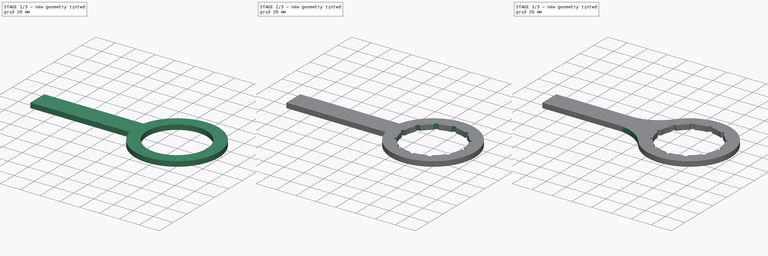
[diagram: build sequence overview — one tinted view per stage of 3, left to right]
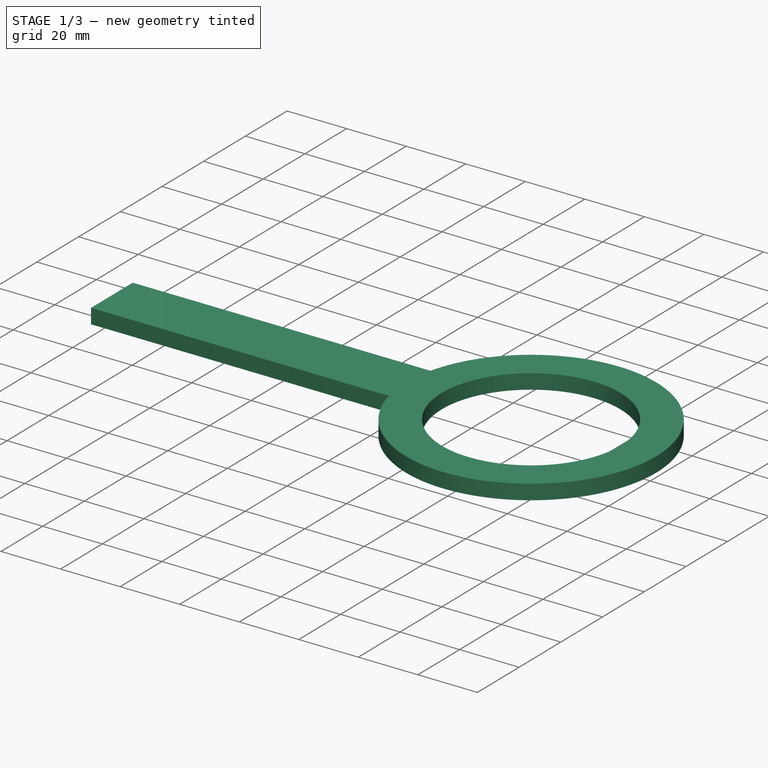
[diagram: stage 1 of 3 — iso view after this stage's code; geometry added in this stage tinted green]
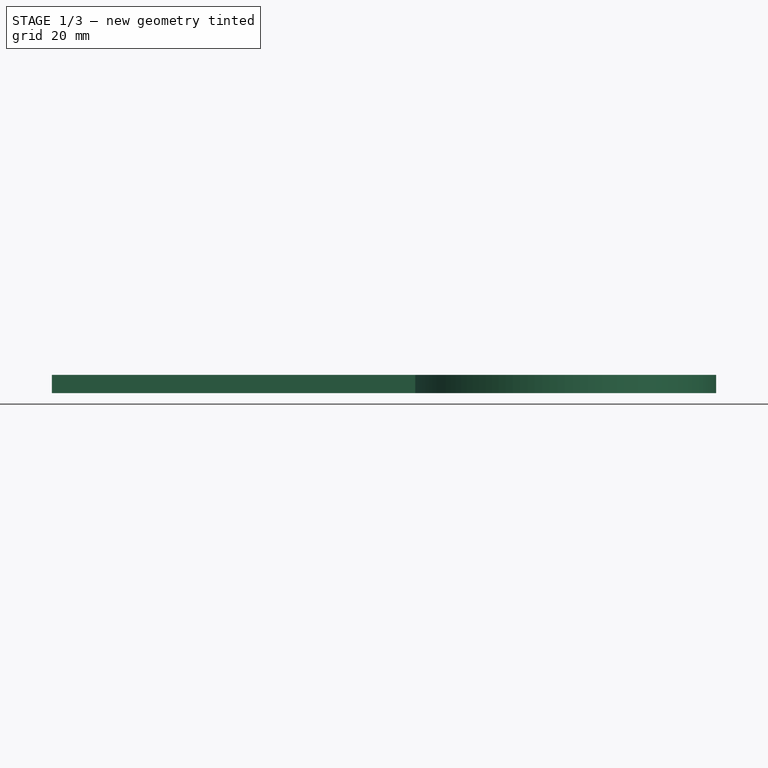
[diagram: stage 1 of 3 — front view after this stage's code; geometry added in this stage tinted green]
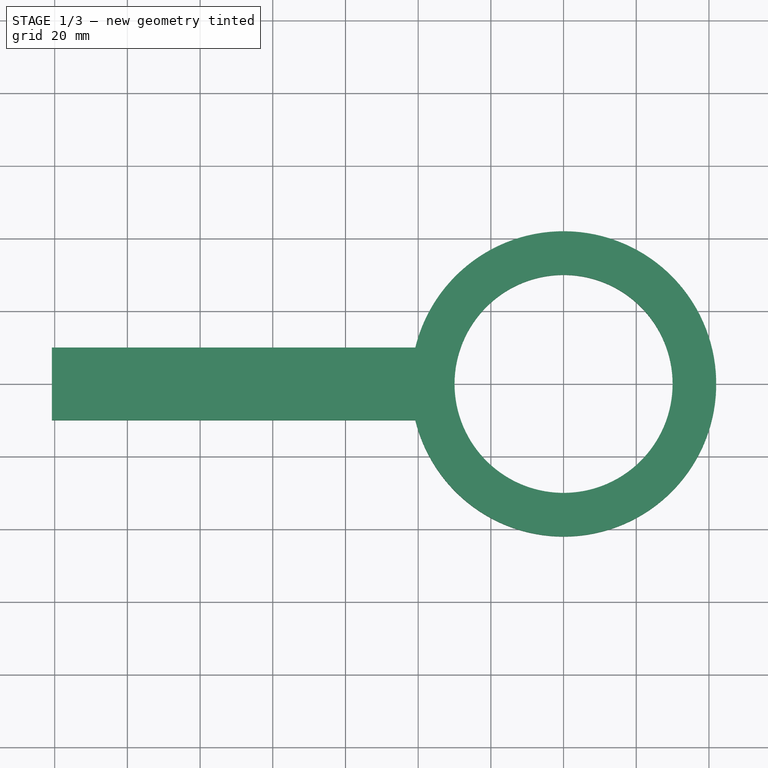
[diagram: stage 1 of 3 — top view after this stage's code; geometry added in this stage tinted green]
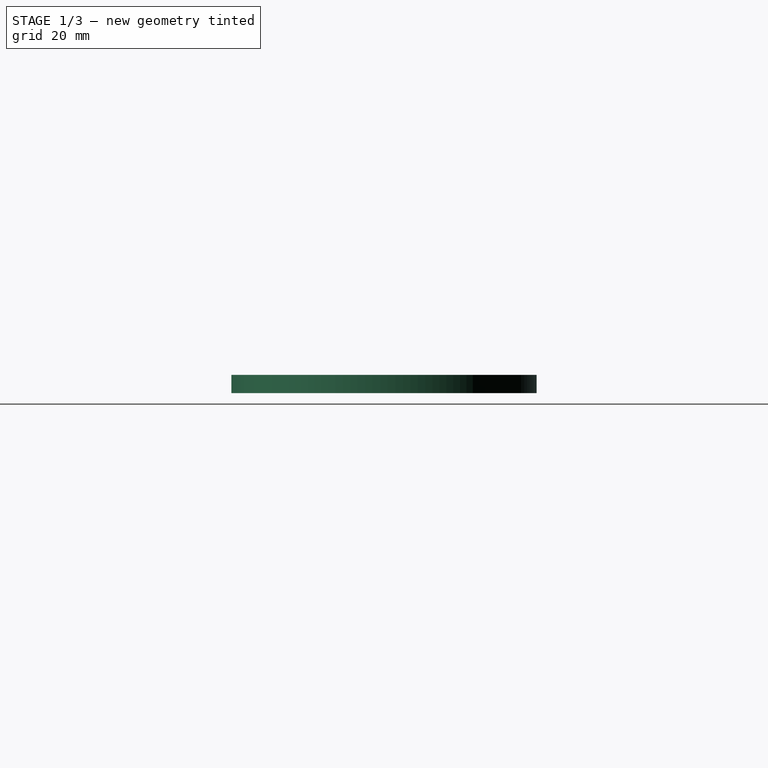
[diagram: stage 1 of 3 — right view after this stage's code; geometry added in this stage tinted green]
FCSTD DOCUMENT  (FreeCAD 0.15R4671 (Git))
Label: resinTankKey
License: CC-BY 3.0
LicenseURL: http://creativecommons.org/licenses/by/3.0/
objects: Sketcher::SketchObject×3, PartDesign::Pocket×2, PartDesign::Fillet×2, PartDesign::Pad×1, PartDesign::PolarPattern×1
note: 12 computed .brp shape members not serialized (recipe doc carries the construction recipe); baked Part::Feature solids carry a one-line shape summary decoded from their .brp

FEATURE [Sketcher::SketchObject] Sketch  label="Sketch corps"
  sketch-geometry (4):
    g0: LineSegment StartX=-140.792 StartY=10 StartZ=0 EndX=-40.7922 EndY=10 EndZ=0
    g1: LineSegment StartX=-40.7922 StartY=-10 StartZ=0 EndX=-140.792 EndY=-10 EndZ=0
    g2: LineSegment StartX=-140.792 StartY=-10 StartZ=0 EndX=-140.792 EndY=10 EndZ=0
    g3: ArcOfCircle CenterX=0 CenterY=0 CenterZ=0 NormalX=0 NormalY=0 NormalZ=1 Radius=42 StartAngle=3.382 EndAngle=9.18437
  constraints (13):
    c: Coincident(g1,g2)
    c: Coincident(g2,g0)
    c: Horizontal(g0)
    c: Horizontal(g1)
    c: Vertical(g2)
    c: Coincident(g0,g3)
    c: Coincident(g1,g3)
    c: Equal(g0,g1)
    c: Distance(g2) = 20
    c: Distance(g0) = 100
    c: DistanceY(g-1,g3) = 0
    c: DistanceX(g-1,g3) = 0
    c: Radius(g3) = 42
FEATURE [PartDesign::Pad] Pad
  Length = 5
  Length2 = 100
  Sketch = -> Sketch
  Type = 0
FEATURE [Sketcher::SketchObject] Sketch001  label="Sketch trou"
  Placement = pos=(0,0,5) rot=(0,0,1;0rad)
  Support = -> Pad [Face6]
  sketch-geometry (1):
    g0: Circle CenterX=0 CenterY=0 CenterZ=0 NormalX=0 NormalY=0 NormalZ=1 Radius=30
  constraints (3):
    c: DistanceY(g-1,g0) = 0
    c: DistanceX(g-1,g0) = 0
    c: Radius(g0) = 30
FEATURE [PartDesign::Pocket] Pocket  label="trou"
  Length = 5
  Sketch = -> Sketch001
  Type = 1
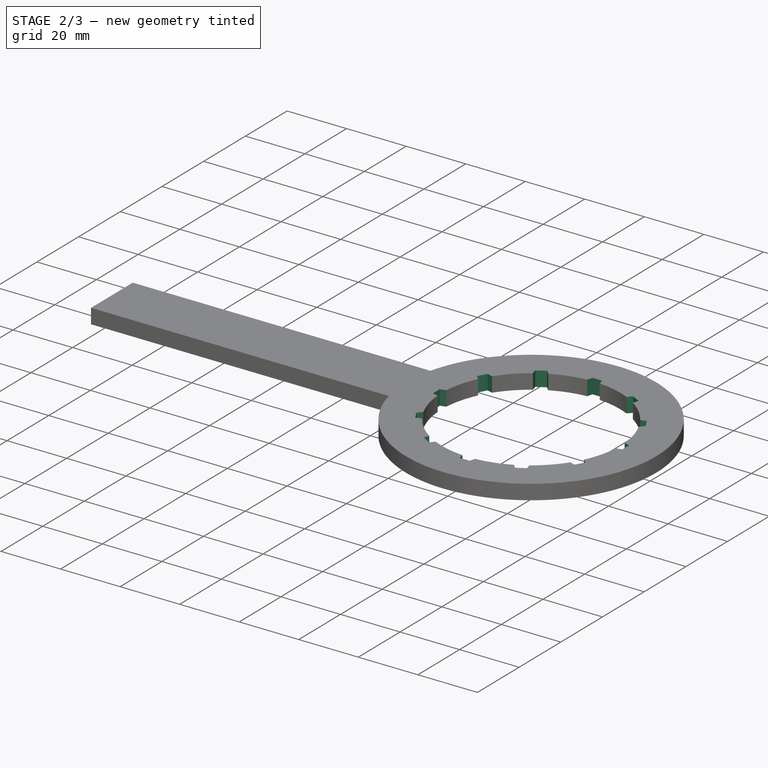
[diagram: stage 2 of 3 — iso view after this stage's code; geometry added in this stage tinted green]
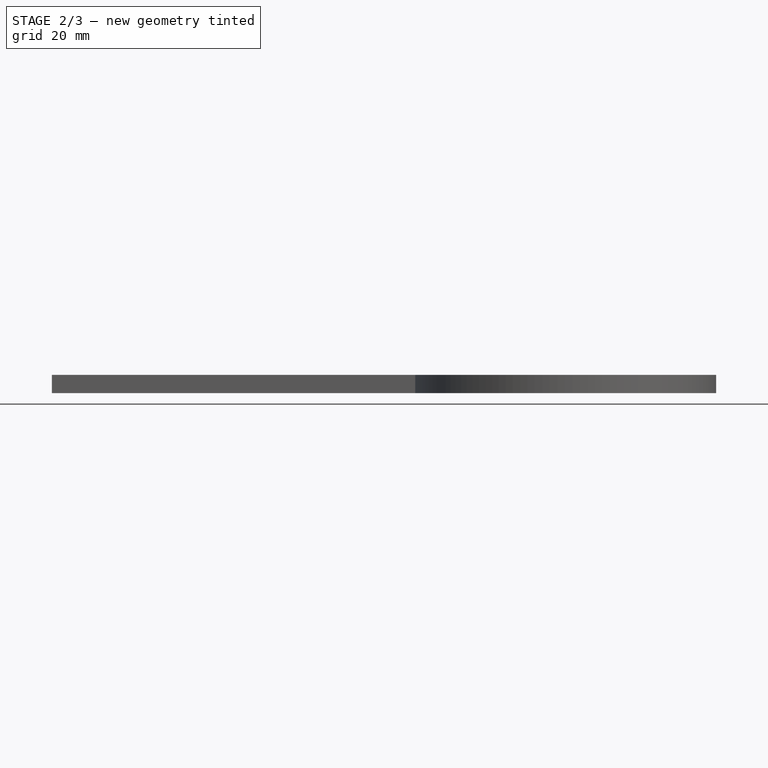
[diagram: stage 2 of 3 — front view after this stage's code; geometry added in this stage tinted green]
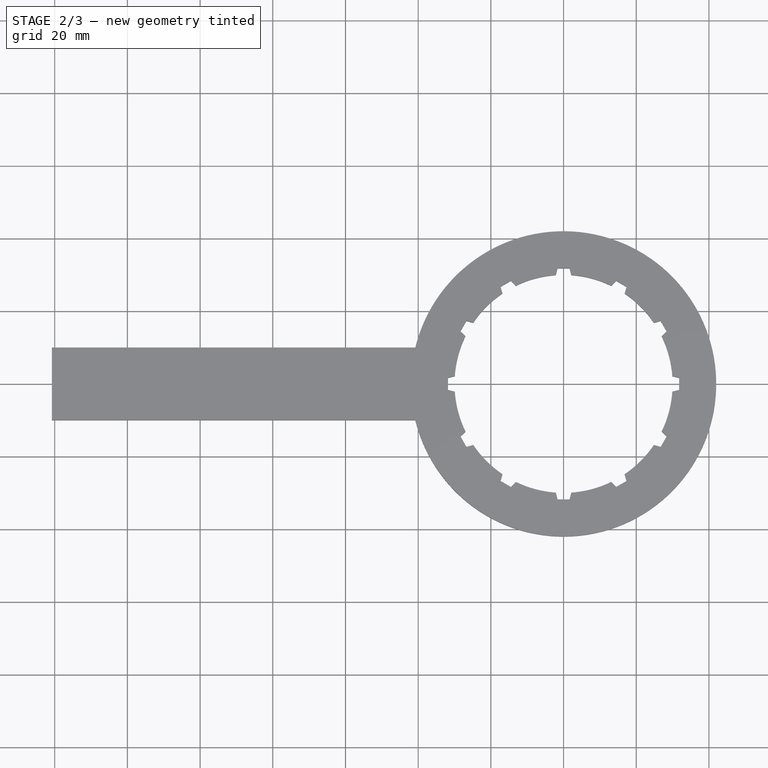
[diagram: stage 2 of 3 — top view after this stage's code; geometry added in this stage tinted green]
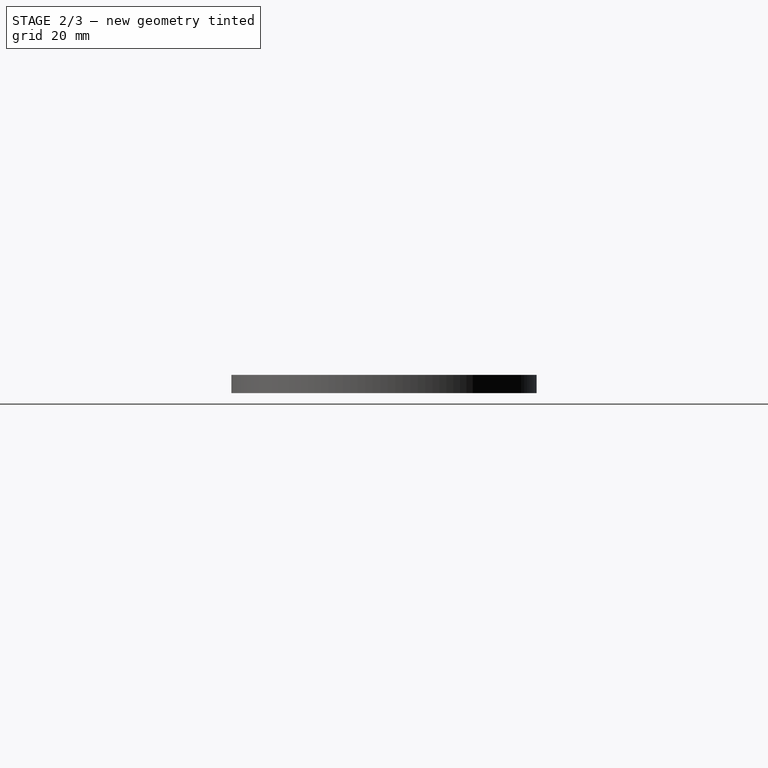
[diagram: stage 2 of 3 — right view after this stage's code; geometry added in this stage tinted green]
FEATURE [Sketcher::SketchObject] Sketch002
  Placement = pos=(0,0,5) rot=(0,0,1;0rad)
  Support = -> Pocket [Face5]
  sketch-geometry (4):
    g0: LineSegment StartX=-1.65 StartY=31.8 StartZ=0 EndX=-2.15 EndY=29.8 EndZ=0
    g1: LineSegment StartX=-2.15 StartY=29.8 StartZ=0 EndX=2.15 EndY=29.8 EndZ=0
    g2: LineSegment StartX=2.15 StartY=29.8 StartZ=0 EndX=1.65 EndY=31.8 EndZ=0
    g3: LineSegment StartX=-1.65 StartY=31.8 StartZ=0 EndX=1.65 EndY=31.8 EndZ=0
  constraints (12):
    c: Distance(g0,g2) = 3.3
    c: Coincident(g0,g1)
    c: Coincident(g1,g2)
    c: Equal(g2,g0)
    c: Coincident(g0,g3)
    c: Coincident(g2,g3)
    c: Horizontal(g1)
    c: DistanceY(g-1,g1) = 29.8
    c: Distance(g1) = 4.3
    c: DistanceY(g2,g1) = -2
    c: Horizontal(g3)
    c: DistanceX(g-1,g0) = -2.15
FEATURE [PartDesign::Pocket] Pocket001  label="encoche"
  Length = 5
  Sketch = -> Sketch002
  Type = 1
FEATURE [PartDesign::PolarPattern] PolarPattern
  Angle = 360
  Axis = -> Sketch002 [N_Axis]
  Occurrences = 12
  Originals = -> [Pocket001]
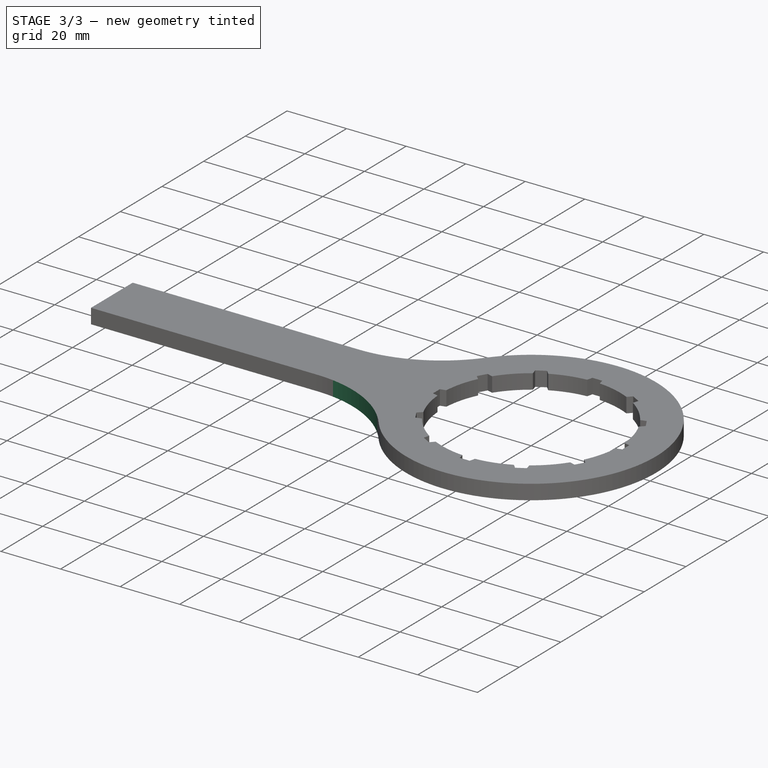
[diagram: stage 3 of 3 — iso view after this stage's code; geometry added in this stage tinted green]
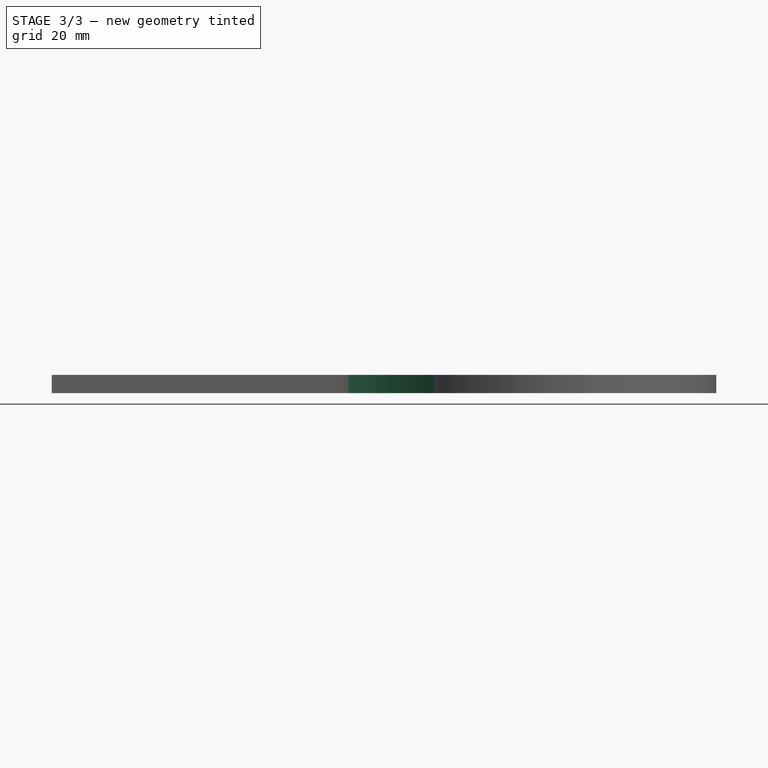
[diagram: stage 3 of 3 — front view after this stage's code; geometry added in this stage tinted green]
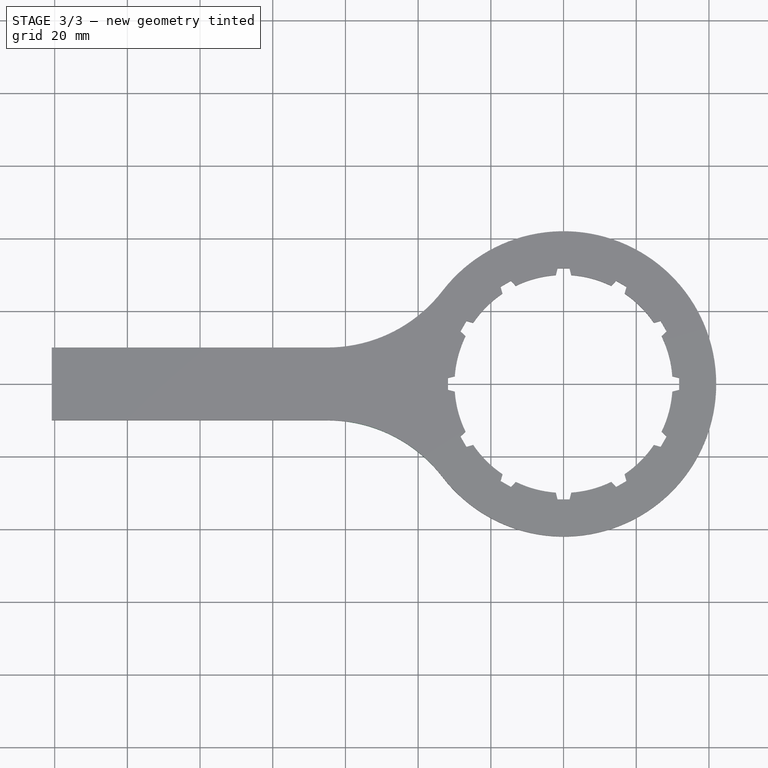
[diagram: stage 3 of 3 — top view after this stage's code; geometry added in this stage tinted green]
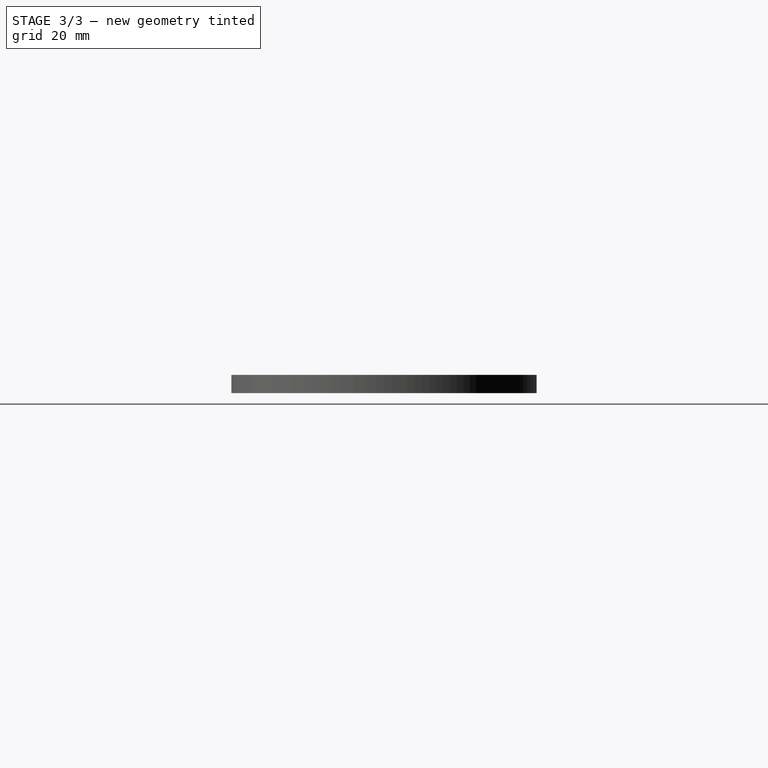
[diagram: stage 3 of 3 — right view after this stage's code; geometry added in this stage tinted green]
FEATURE [PartDesign::Fillet] Fillet
  Base = -> PolarPattern [Edge1]
  Radius = 40
FEATURE [PartDesign::Fillet] Fillet001
  Base = -> Fillet [Edge111]
  Radius = 40
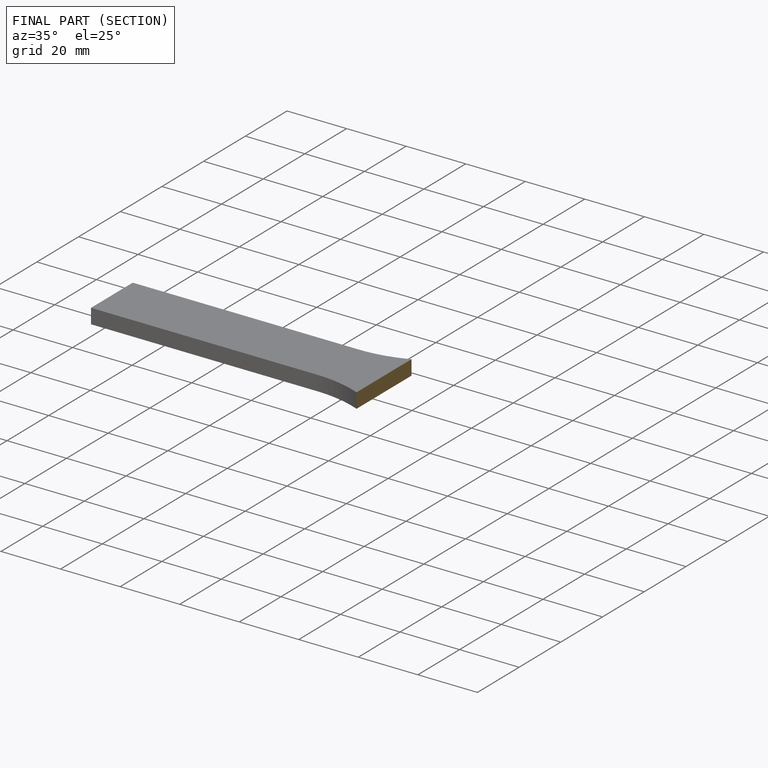
[diagram: finished part — half-section view (interior)]
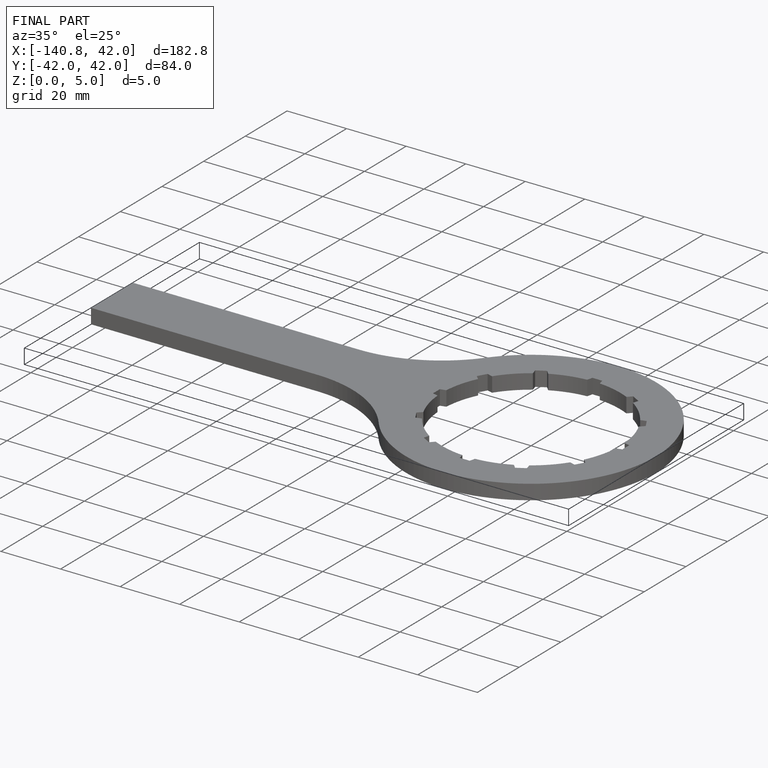
[diagram: finished part — iso view with bounding-box wireframe]
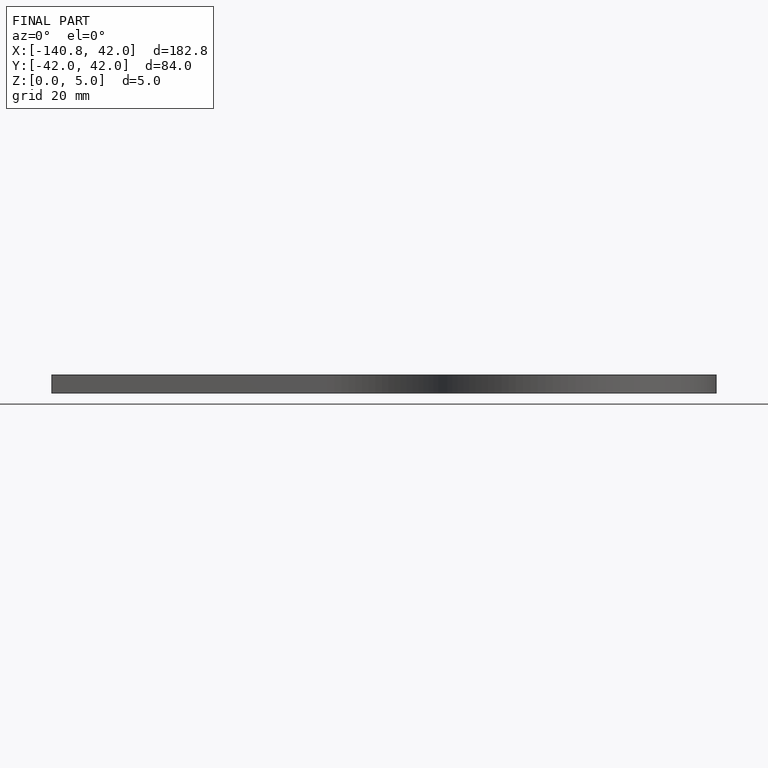
[diagram: finished part — front view with bounding-box wireframe]
